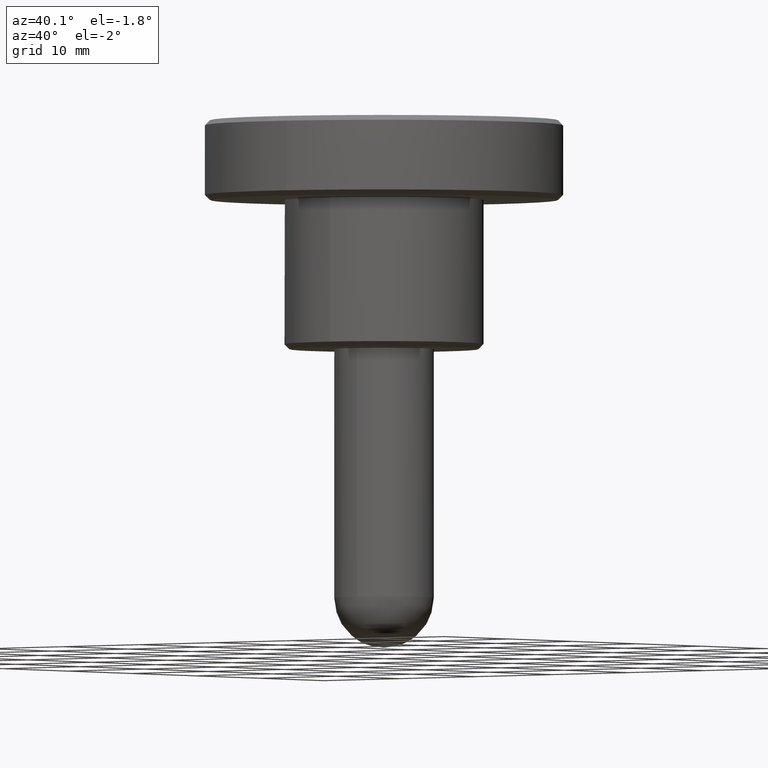
[diagram: clean part render]
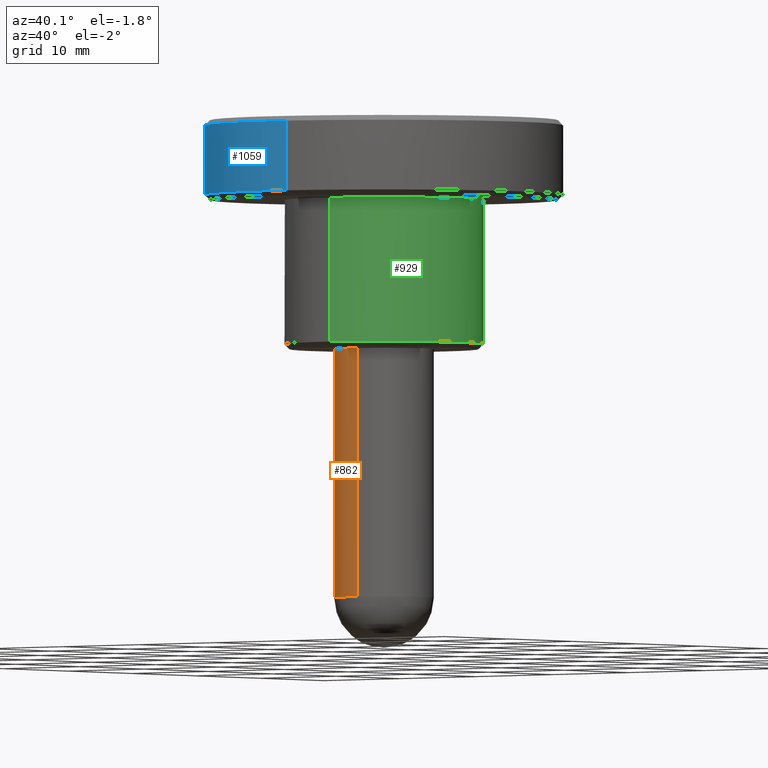
[diagram: same view with three faces highlighted in distinct colors, each labeled with its STEP entity id]
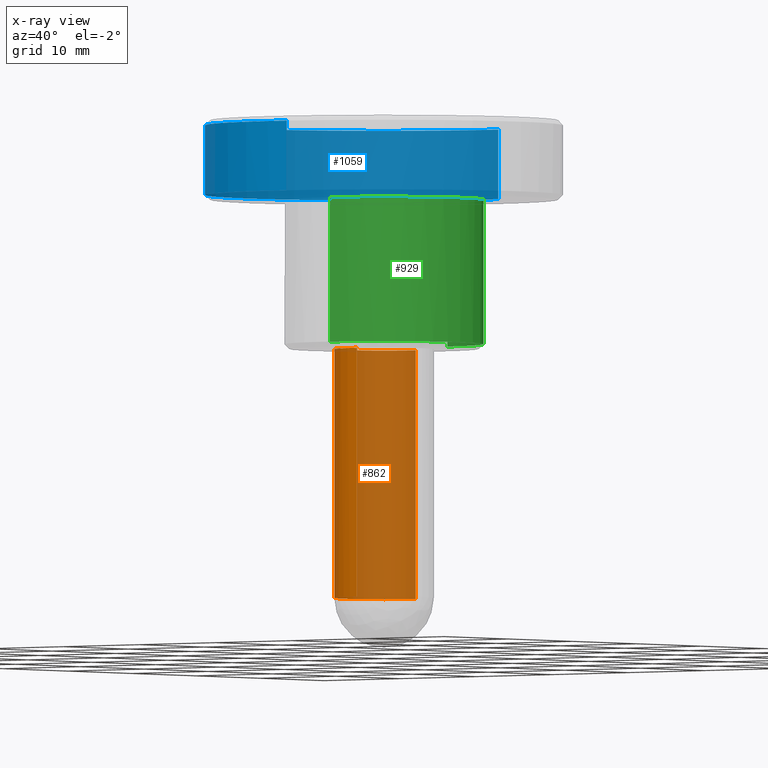
[diagram: x-ray of the same camera — body ghosted, the three highlighted faces saturated]
A machine part, auxiliary view with three faces highlighted in distinct colors.
The next image is the same camera in x-ray (body ghosted, the three faces saturated) — at least one of them is partly hidden behind the body in this view.
Their STEP definitions:

[orange] entity #862 — the highlighted face is a freeform B-spline surface patch.
#695=CARTESIAN_POINT('',(0.620640010450139,-4.961331069121314,-25.0));
#696=VERTEX_POINT('',#695);
#712=CARTESIAN_POINT('',(-0.043632677532883,4.999809615320498,-25.0));
#713=VERTEX_POINT('',#712);
#729=CARTESIAN_POINT('',(-0.043632677526926,4.999809615320549,-5.551115E-017));
#730=VERTEX_POINT('',#729);
#731=CARTESIAN_POINT('',(-0.043632677532883,4.999809615320498,-25.0));
#732=CARTESIAN_POINT('',(-0.043632677526926,4.999809615320549,-5.551115E-017));
#733=QUASI_UNIFORM_CURVE('',1,(#731,#732),.UNSPECIFIED.,.F.,.U.);
#734=EDGE_CURVE('',#713,#730,#733,.T.);
#753=CARTESIAN_POINT('',(0.620640010435135,-4.961331069123191,-5.801229E-017));
#754=VERTEX_POINT('',#753);
#768=CARTESIAN_POINT('',(0.620640010450139,-4.961331069121314,-25.0));
#769=CARTESIAN_POINT('',(0.620640010435135,-4.961331069123191,-5.801229E-017));
#770=QUASI_UNIFORM_CURVE('',1,(#768,#769),.UNSPECIFIED.,.F.,.U.);
#771=EDGE_CURVE('',#696,#754,#770,.T.);
#776=CARTESIAN_POINT('',(-0.043632677491869,4.999809615320855,-25.625000000000000));
#777=CARTESIAN_POINT('',(-5.043442292812725,4.956176937828985,-25.625000000000014));
#778=CARTESIAN_POINT('',(-4.999809615320855,-0.043632677491869,-25.625000000000000));
#779=CARTESIAN_POINT('',(-4.956176937828985,-5.043442292812725,-25.625000000000014));
#780=CARTESIAN_POINT('',(0.043632677491869,-4.999809615320855,-25.625000000000000));
#781=CARTESIAN_POINT('',(0.333250794790868,-4.997282156301378,-25.625000000000007));
#782=CARTESIAN_POINT('',(0.620640010399146,-4.961331069127693,-25.625000000000004));
#783=CARTESIAN_POINT('',(-0.043632677491869,4.999809615320855,0.640625000000004));
#784=CARTESIAN_POINT('',(-5.043442292812725,4.956176937828985,0.640625000000004));
#785=CARTESIAN_POINT('',(-4.999809615320855,-0.043632677491869,0.640625000000004));
#786=CARTESIAN_POINT('',(-4.956176937828985,-5.043442292812725,0.640625000000004));
#787=CARTESIAN_POINT('',(0.043632677491869,-4.999809615320855,0.640625000000004));
#788=CARTESIAN_POINT('',(0.333250794790868,-4.997282156301378,0.640625000000003));
#789=CARTESIAN_POINT('',(0.620640010399146,-4.961331069127693,0.640625000000004));
#797=(BOUNDED_SURFACE()B_SPLINE_SURFACE(2,1,((#776,#783),(#777,#784),(#778,#785),(#779,#786),(#780,#787),(#781,#788),(#782,#789)),.UNSPECIFIED.,.F.,.F.,.U.)B_SPLINE_SURFACE_WITH_KNOTS((3,2,2,3),(2,2),(0.0,8.284271247461899,16.568542494923800,17.231284194720750),(0.0,26.265625000000011),.UNSPECIFIED.)GEOMETRIC_REPRESENTATION_ITEM()RATIONAL_B_SPLINE_SURFACE(((1.0,1.0),(0.707106781186548,0.707106781186548),(1.0,1.0),(0.707106781186548,0.707106781186548),(1.0,1.0),(0.976568542494924,0.976568542494924),(0.956886118190660,0.956886118190660)))REPRESENTATION_ITEM('')SURFACE());
#798=CARTESIAN_POINT('',(-5.0,0.0,-25.0));
#799=VERTEX_POINT('',#798);
#800=CARTESIAN_POINT('',(-5.0,0.0,-25.0));
#801=CARTESIAN_POINT('',(-5.000000000000001,-5.000000000000001,-25.0));
#802=CARTESIAN_POINT('',(0.0,-5.0,-25.0));
#803=CARTESIAN_POINT('',(0.311524637719071,-5.000000000000001,-24.999999999999996));
#804=CARTESIAN_POINT('',(0.620640010450139,-4.961331069121315,-25.000000000000004));
#812=(BOUNDED_CURVE()B_SPLINE_CURVE(2,(#800,#801,#802,#803,#804),.UNSPECIFIED.,.F.,.U.)B_SPLINE_CURVE_WITH_KNOTS((3,2,3),(0.500000000000000,0.750000000000000,0.771473928974169),.UNSPECIFIED.)CURVE()GEOMETRIC_REPRESENTATION_ITEM()RATIONAL_B_SPLINE_CURVE((1.0,0.707106781186548,1.0,0.974841727288737,0.954005430267990))REPRESENTATION_ITEM(''));
#813=EDGE_CURVE('',#799,#696,#812,.T.);
#814=ORIENTED_EDGE('',*,*,#813,.T.);
#815=ORIENTED_EDGE('',*,*,#771,.T.);
#816=CARTESIAN_POINT('',(-5.0,0.0,0.0));
#817=VERTEX_POINT('',#816);
#818=CARTESIAN_POINT('',(0.620640010435135,-4.961331069123191,-5.801229E-017));
#819=CARTESIAN_POINT('',(0.311524637703881,-5.0,0.0));
#820=CARTESIAN_POINT('',(0.0,-5.0,0.0));
#821=CARTESIAN_POINT('',(-5.000000000000001,-5.000000000000001,0.0));
#822=CARTESIAN_POINT('',(-5.0,0.0,0.0));
#830=(BOUNDED_CURVE()B_SPLINE_CURVE(2,(#818,#819,#820,#821,#822),.UNSPECIFIED.,.F.,.U.)B_SPLINE_CURVE_WITH_KNOTS((3,2,3),(0.728526071026852,0.750000000000000,1.0),.UNSPECIFIED.)CURVE()GEOMETRIC_REPRESENTATION_ITEM()RATIONAL_B_SPLINE_CURVE((0.954005430269971,0.974841727289933,1.0,0.707106781186548,1.0))REPRESENTATION_ITEM(''));
#831=EDGE_CURVE('',#754,#817,#830,.T.);
#832=ORIENTED_EDGE('',*,*,#831,.T.);
#833=CARTESIAN_POINT('',(-5.0,0.0,0.0));
#834=CARTESIAN_POINT('',(-5.000000000000001,4.956556052905382,0.0));
#835=CARTESIAN_POINT('',(-0.043632677526926,4.999809615320550,-5.551115E-017));
#843=(BOUNDED_CURVE()B_SPLINE_CURVE(2,(#833,#834,#835),.UNSPECIFIED.,.F.,.U.)B_SPLINE_CURVE_WITH_KNOTS((3,3),(0.0,0.248460105662543),.UNSPECIFIED.)CURVE()GEOMETRIC_REPRESENTATION_ITEM()RATIONAL_B_SPLINE_CURVE((1.0,0.708910879623069,0.996414028094689))REPRESENTATION_ITEM(''));
#844=EDGE_CURVE('',#817,#730,#843,.T.);
#845=ORIENTED_EDGE('',*,*,#844,.T.);
#846=ORIENTED_EDGE('',*,*,#734,.F.);
#847=CARTESIAN_POINT('',(-0.043632677532883,4.999809615320498,-25.0));
#848=CARTESIAN_POINT('',(-5.000000000000001,4.956556052893570,-25.000000000000004));
#849=CARTESIAN_POINT('',(-5.0,0.0,-25.0));
#857=(BOUNDED_CURVE()B_SPLINE_CURVE(2,(#847,#848,#849),.UNSPECIFIED.,.F.,.U.)B_SPLINE_CURVE_WITH_KNOTS((3,3),(0.251539894337877,0.500000000000000),.UNSPECIFIED.)CURVE()GEOMETRIC_REPRESENTATION_ITEM()RATIONAL_B_SPLINE_CURVE((0.996414028093718,0.708910879623561,1.0))REPRESENTATION_ITEM(''));
#858=EDGE_CURVE('',#713,#799,#857,.T.);
#859=ORIENTED_EDGE('',*,*,#858,.T.);
#860=EDGE_LOOP('',(#814,#815,#832,#845,#846,#859));
#861=FACE_OUTER_BOUND('',#860,.T.);
#862=ADVANCED_FACE('',(#861),#797,.T.);

[blue] entity #1059 — the highlighted face is a freeform B-spline surface patch.
#70=CARTESIAN_POINT('',(-17.535926757209861,-4.060944811979751,22.499999999995168));
#71=VERTEX_POINT('',#70);
#72=CARTESIAN_POINT('',(-18.0,0.0,22.500000000000000));
#73=VERTEX_POINT('',#72);
#74=CARTESIAN_POINT('',(-17.535926757209864,-4.060944811979750,22.499999999995158));
#75=CARTESIAN_POINT('',(-17.999999999999996,-2.056988892277946,22.500000000000000));
#76=CARTESIAN_POINT('',(-18.0,0.0,22.500000000000000));
#84=(BOUNDED_CURVE()B_SPLINE_CURVE(2,(#74,#75,#76),.UNSPECIFIED.,.F.,.U.)B_SPLINE_CURVE_WITH_KNOTS((3,3),(0.961422971783845,1.0),.UNSPECIFIED.)CURVE()GEOMETRIC_REPRESENTATION_ITEM()RATIONAL_B_SPLINE_CURVE((0.923556557441548,0.954804200134052,1.0))REPRESENTATION_ITEM(''));
#85=EDGE_CURVE('',#71,#73,#84,.T.);
#143=CARTESIAN_POINT('',(-0.157077639032708,-17.999314615162959,22.499999999991580));
#144=VERTEX_POINT('',#143);
#150=CARTESIAN_POINT('',(2.234293266750887,-17.860793196217060,22.499999999999940));
#151=VERTEX_POINT('',#150);
#152=CARTESIAN_POINT('',(2.234293266750888,-17.860793196217056,22.499999999999936));
#153=CARTESIAN_POINT('',(1.121483247218361,-18.000000000000004,22.500000000000004));
#154=CARTESIAN_POINT('',(0.0,-18.0,22.500000000000000));
#155=CARTESIAN_POINT('',(-0.078540314834508,-18.0,22.500000000000000));
#156=CARTESIAN_POINT('',(-0.157077639032708,-17.999314615162966,22.499999999991577));
#164=(BOUNDED_CURVE()B_SPLINE_CURVE(2,(#152,#153,#154,#155,#156),.UNSPECIFIED.,.F.,.U.)B_SPLINE_CURVE_WITH_KNOTS((3,2,3),(0.728526172728731,0.750000000000000,0.751539894336198),.UNSPECIFIED.)CURVE()GEOMETRIC_REPRESENTATION_ITEM()RATIONAL_B_SPLINE_CURVE((0.954005627634095,0.974841846441095,1.0,0.998195901564953,0.996414028097603))REPRESENTATION_ITEM(''));
#165=EDGE_CURVE('',#151,#144,#164,.T.);
#182=CARTESIAN_POINT('',(-0.157060872765595,17.999314761455910,22.499999999999972));
#183=VERTEX_POINT('',#182);
#199=CARTESIAN_POINT('',(-18.0,0.0,22.500000000000000));
#200=CARTESIAN_POINT('',(-18.000000000000004,17.843618412510050,22.500000000000004));
#201=CARTESIAN_POINT('',(-0.157060872765595,17.999314761455917,22.499999999999968));
#209=(BOUNDED_CURVE()B_SPLINE_CURVE(2,(#199,#200,#201),.UNSPECIFIED.,.F.,.U.)B_SPLINE_CURVE_WITH_KNOTS((3,3),(0.0,0.248460269740511),.UNSPECIFIED.)CURVE()GEOMETRIC_REPRESENTATION_ITEM()RATIONAL_B_SPLINE_CURVE((1.0,0.708910687393773,0.996414407817330))REPRESENTATION_ITEM(''));
#210=EDGE_CURVE('',#73,#183,#209,.T.);
#229=CARTESIAN_POINT('',(-0.157077639032708,-17.999314615162955,22.499999999991577));
#230=CARTESIAN_POINT('',(-14.336755532668068,-17.875570440763699,22.500000000000007));
#231=CARTESIAN_POINT('',(-17.535926757209861,-4.060944811979752,22.499999999995168));
#239=(BOUNDED_CURVE()B_SPLINE_CURVE(2,(#229,#230,#231),.UNSPECIFIED.,.F.,.U.)B_SPLINE_CURVE_WITH_KNOTS((3,3),(0.751539894336199,0.961422971783844),.UNSPECIFIED.)CURVE()GEOMETRIC_REPRESENTATION_ITEM()RATIONAL_B_SPLINE_CURVE((0.996414028097602,0.753549905437675,0.923556557441546))REPRESENTATION_ITEM(''));
#240=EDGE_CURVE('',#144,#71,#239,.T.);
#337=CARTESIAN_POINT('',(0.157077645517671,-17.999314617755640,15.500000002657560));
#338=VERTEX_POINT('',#337);
#344=CARTESIAN_POINT('',(-18.0,0.0,15.500000000000000));
#345=VERTEX_POINT('',#344);
#346=CARTESIAN_POINT('',(-18.0,0.0,15.500000000000000));
#347=CARTESIAN_POINT('',(-18.000000000000007,-18.000000000000007,15.500000000000005));
#348=CARTESIAN_POINT('',(0.0,-18.0,15.500000000000000));
#349=CARTESIAN_POINT('',(0.078540321296755,-18.000000000000004,15.500000000000005));
#350=CARTESIAN_POINT('',(0.157077645517671,-17.999314617755633,15.500000002657558));
#358=(BOUNDED_CURVE()B_SPLINE_CURVE(2,(#346,#347,#348,#349,#350),.UNSPECIFIED.,.F.,.U.)B_SPLINE_CURVE_WITH_KNOTS((3,2,3),(0.0,0.250000000000000,0.251539894462671),.UNSPECIFIED.)CURVE()GEOMETRIC_REPRESENTATION_ITEM()RATIONAL_B_SPLINE_CURVE((1.0,0.707106781186547,1.0,0.998195901416781,0.996414027804909))REPRESENTATION_ITEM(''));
#359=EDGE_CURVE('',#345,#338,#358,.T.);
#361=CARTESIAN_POINT('',(-0.157060678357192,17.999314763152132,15.500000000000000));
#362=VERTEX_POINT('',#361);
#363=CARTESIAN_POINT('',(-0.157060678357192,17.999314763152125,15.500000000000002));
#364=CARTESIAN_POINT('',(-17.999999999999996,17.843618605244128,15.500000000000007));
#365=CARTESIAN_POINT('',(-18.0,0.0,15.500000000000000));
#373=(BOUNDED_CURVE()B_SPLINE_CURVE(2,(#363,#364,#365),.UNSPECIFIED.,.F.,.U.)B_SPLINE_CURVE_WITH_KNOTS((3,3),(0.751539728356992,1.0),.UNSPECIFIED.)CURVE()GEOMETRIC_REPRESENTATION_ITEM()RATIONAL_B_SPLINE_CURVE((0.996414412220248,0.708910685164858,1.0))REPRESENTATION_ITEM(''));
#374=EDGE_CURVE('',#362,#345,#373,.T.);
#444=CARTESIAN_POINT('',(2.234295641323565,-17.860792899171379,15.500000000000000));
#445=VERTEX_POINT('',#444);
#459=CARTESIAN_POINT('',(0.157077645517671,-17.999314617755640,15.500000002657565));
#460=CARTESIAN_POINT('',(1.199698622931773,-17.990215798916342,15.500000000000000));
#461=CARTESIAN_POINT('',(2.234295641323565,-17.860792899171390,15.500000000000007));
#469=(BOUNDED_CURVE()B_SPLINE_CURVE(2,(#459,#460,#461),.UNSPECIFIED.,.F.,.U.)B_SPLINE_CURVE_WITH_KNOTS((3,3),(0.251539894462671,0.271473849692561),.UNSPECIFIED.)CURVE()GEOMETRIC_REPRESENTATION_ITEM()RATIONAL_B_SPLINE_CURVE((0.996414027804909,0.973347649124152,0.954005584122997))REPRESENTATION_ITEM(''));
#470=EDGE_CURVE('',#338,#445,#469,.T.);
#1009=CARTESIAN_POINT('',(2.234295641323565,-17.860792899171379,15.500000000000000));
#1010=CARTESIAN_POINT('',(2.234293266750887,-17.860793196217060,22.499999999999940));
#1011=QUASI_UNIFORM_CURVE('',1,(#1009,#1010),.UNSPECIFIED.,.F.,.U.);
#1012=EDGE_CURVE('',#445,#151,#1011,.T.);
#1017=CARTESIAN_POINT('',(-0.157060678357192,17.999314763152132,15.500000000000000));
#1018=CARTESIAN_POINT('',(-0.157060872765595,17.999314761455910,22.499999999999972));
#1019=QUASI_UNIFORM_CURVE('',1,(#1017,#1018),.UNSPECIFIED.,.F.,.U.);
#1020=EDGE_CURVE('',#362,#183,#1019,.T.);
#1026=CARTESIAN_POINT('',(-0.157077638970730,17.999314615155079,15.324999999999999));
#1027=CARTESIAN_POINT('',(-18.156392254125802,17.842236976184342,15.324999999999998));
#1028=CARTESIAN_POINT('',(-17.999314615155079,-0.157077638970730,15.324999999999999));
#1029=CARTESIAN_POINT('',(-17.842236976184342,-18.156392254125802,15.324999999999998));
#1030=CARTESIAN_POINT('',(0.157077638970730,-17.999314615155079,15.324999999999999));
#1031=CARTESIAN_POINT('',(1.199702861247124,-17.990215762684961,15.325000000000003));
#1032=CARTESIAN_POINT('',(2.234304037436927,-17.860791848859694,15.324999999999998));
#1033=CARTESIAN_POINT('',(-0.157077638970730,17.999314615155079,22.679375000000000));
#1034=CARTESIAN_POINT('',(-18.156392254125802,17.842236976184342,22.679375000000000));
#1035=CARTESIAN_POINT('',(-17.999314615155079,-0.157077638970730,22.679375000000000));
#1036=CARTESIAN_POINT('',(-17.842236976184342,-18.156392254125802,22.679375000000000));
#1037=CARTESIAN_POINT('',(0.157077638970730,-17.999314615155079,22.679375000000000));
#1038=CARTESIAN_POINT('',(1.199702861247124,-17.990215762684961,22.679375000000004));
#1039=CARTESIAN_POINT('',(2.234304037436927,-17.860791848859694,22.679375000000004));
#1047=(BOUNDED_SURFACE()B_SPLINE_SURFACE(2,1,((#1026,#1033),(#1027,#1034),(#1028,#1035),(#1029,#1036),(#1030,#1037),(#1031,#1038),(#1032,#1039)),.UNSPECIFIED.,.F.,.F.,.U.)B_SPLINE_SURFACE_WITH_KNOTS((3,2,2,3),(2,2),(0.0,29.823376490862831,59.646752981725669,62.032623100994698),(0.0,7.354375000000009),.UNSPECIFIED.)GEOMETRIC_REPRESENTATION_ITEM()RATIONAL_B_SPLINE_SURFACE(((1.0,1.0),(0.707106781186548,0.707106781186548),(1.0,1.0),(0.707106781186548,0.707106781186548),(1.0,1.0),(0.976568542494924,0.976568542494924),(0.956886118190660,0.956886118190660)))REPRESENTATION_ITEM('')SURFACE());
#1048=ORIENTED_EDGE('',*,*,#165,.T.);
#1049=ORIENTED_EDGE('',*,*,#240,.T.);
#1050=ORIENTED_EDGE('',*,*,#85,.T.);
#1051=ORIENTED_EDGE('',*,*,#210,.T.);
#1052=ORIENTED_EDGE('',*,*,#1020,.F.);
#1053=ORIENTED_EDGE('',*,*,#374,.T.);
#1054=ORIENTED_EDGE('',*,*,#359,.T.);
#1055=ORIENTED_EDGE('',*,*,#470,.T.);
#1056=ORIENTED_EDGE('',*,*,#1012,.T.);
#1057=EDGE_LOOP('',(#1048,#1049,#1050,#1051,#1052,#1053,#1054,#1055,#1056));
#1058=FACE_OUTER_BOUND('',#1057,.T.);
#1059=ADVANCED_FACE('',(#1058),#1047,.T.);

[green] entity #929 — the highlighted face is a freeform B-spline surface patch.
#500=CARTESIAN_POINT('',(1.241272380013459,-9.922663094076931,0.499999999999901));
#501=VERTEX_POINT('',#500);
#558=CARTESIAN_POINT('',(-0.087263212267545,9.999619249339538,0.499999999999496));
#559=VERTEX_POINT('',#558);
#565=CARTESIAN_POINT('',(10.0,0.0,0.499999999999945));
#566=VERTEX_POINT('',#565);
#567=CARTESIAN_POINT('',(10.0,0.0,0.499999999999945));
#568=CARTESIAN_POINT('',(10.000000000000002,10.000000000000002,0.499999999999945));
#569=CARTESIAN_POINT('',(0.0,10.0,0.499999999999945));
#570=CARTESIAN_POINT('',(-0.043632436787731,10.0,0.499999999999945));
#571=CARTESIAN_POINT('',(-0.087263212267545,9.999619249339538,0.499999999999496));
#579=(BOUNDED_CURVE()B_SPLINE_CURVE(2,(#567,#568,#569,#570,#571),.UNSPECIFIED.,.F.,.U.)B_SPLINE_CURVE_WITH_KNOTS((3,2,3),(0.500000000000000,0.750000000000000,0.751539856591150),.UNSPECIFIED.)CURVE()GEOMETRIC_REPRESENTATION_ITEM()RATIONAL_B_SPLINE_CURVE((1.0,0.707106781186548,1.0,0.998195945786028,0.996414115450233))REPRESENTATION_ITEM(''));
#580=EDGE_CURVE('',#566,#559,#579,.T.);
#582=CARTESIAN_POINT('',(1.241272380013459,-9.922663094076931,0.499999999999901));
#583=CARTESIAN_POINT('',(10.0,-8.826992851558027,0.499999999999945));
#584=CARTESIAN_POINT('',(10.0,0.0,0.499999999999945));
#592=(BOUNDED_CURVE()B_SPLINE_CURVE(2,(#582,#583,#584),.UNSPECIFIED.,.F.,.U.)B_SPLINE_CURVE_WITH_KNOTS((3,3),(0.271473799107639,0.500000000000000),.UNSPECIFIED.)CURVE()GEOMETRIC_REPRESENTATION_ITEM()RATIONAL_B_SPLINE_CURVE((0.954005682288873,0.732264901749707,1.0))REPRESENTATION_ITEM(''));
#593=EDGE_CURVE('',#501,#566,#592,.T.);
#863=CARTESIAN_POINT('',(1.241280020798293,-9.922662138255385,0.137499999999943));
#864=CARTESIAN_POINT('',(10.077328305024446,-8.817312581332210,0.137499999999943));
#865=CARTESIAN_POINT('',(9.999619230641709,0.087265354983739,0.137499999999943));
#866=CARTESIAN_POINT('',(9.912353875657971,10.086884585625448,0.137499999999943));
#867=CARTESIAN_POINT('',(-0.087265354983739,9.999619230641709,0.137499999999943));
#868=CARTESIAN_POINT('',(1.241280020798293,-9.922662138255385,15.371562500000005));
#869=CARTESIAN_POINT('',(10.077328305024446,-8.817312581332210,15.371562500000008));
#870=CARTESIAN_POINT('',(9.999619230641709,0.087265354983739,15.371562500000000));
#871=CARTESIAN_POINT('',(9.912353875657971,10.086884585625448,15.371562500000001));
#872=CARTESIAN_POINT('',(-0.087265354983739,9.999619230641709,15.371562500000000));
#880=(BOUNDED_SURFACE()B_SPLINE_SURFACE(2,1,((#863,#868),(#864,#869),(#865,#870),(#866,#871),(#867,#872)),.UNSPECIFIED.,.F.,.F.,.U.)B_SPLINE_SURFACE_WITH_KNOTS((3,2,3),(2,2),(0.0,15.243059095329890,31.811601590253691),(0.0,15.234062500000061),.UNSPECIFIED.)GEOMETRIC_REPRESENTATION_ITEM()RATIONAL_B_SPLINE_SURFACE(((0.956886118190660,0.956886118190660),(0.730538238691624,0.730538238691624),(1.0,1.0),(0.707106781186548,0.707106781186548),(1.0,1.0)))REPRESENTATION_ITEM('')SURFACE());
#881=ORIENTED_EDGE('',*,*,#593,.T.);
#882=ORIENTED_EDGE('',*,*,#580,.T.);
#883=CARTESIAN_POINT('',(-0.087259972945896,9.999619277607147,15.0));
#884=VERTEX_POINT('',#883);
#885=CARTESIAN_POINT('',(-0.087263212267545,9.999619249339538,0.499999999999496));
#886=CARTESIAN_POINT('',(-0.087259972945896,9.999619277607147,15.0));
#887=QUASI_UNIFORM_CURVE('',1,(#885,#886),.UNSPECIFIED.,.F.,.U.);
#888=EDGE_CURVE('',#559,#884,#887,.T.);
#889=ORIENTED_EDGE('',*,*,#888,.T.);
#890=CARTESIAN_POINT('',(10.0,0.0,15.0));
#891=VERTEX_POINT('',#890);
#892=CARTESIAN_POINT('',(-0.087259972945896,9.999619277607147,15.000000000000004));
#893=CARTESIAN_POINT('',(-0.043630817034404,9.999999999999998,15.000000000000005));
#894=CARTESIAN_POINT('',(0.0,10.0,15.0));
#895=CARTESIAN_POINT('',(10.000000000000002,10.000000000000002,14.999999999999995));
#896=CARTESIAN_POINT('',(10.0,0.0,15.0));
#904=(BOUNDED_CURVE()B_SPLINE_CURVE(2,(#892,#893,#894,#895,#896),.UNSPECIFIED.,.F.,.U.)B_SPLINE_CURVE_WITH_KNOTS((3,2,3),(0.248460200469343,0.250000000000000,0.500000000000000),.UNSPECIFIED.)CURVE()GEOMETRIC_REPRESENTATION_ITEM()RATIONAL_B_SPLINE_CURVE((0.996414247504272,0.998196012636554,1.0,0.707106781186548,1.0))REPRESENTATION_ITEM(''));
#905=EDGE_CURVE('',#884,#891,#904,.T.);
#906=ORIENTED_EDGE('',*,*,#905,.T.);
#907=CARTESIAN_POINT('',(1.241270529552836,-9.922663325557917,15.0));
#908=VERTEX_POINT('',#907);
#909=CARTESIAN_POINT('',(10.0,0.0,15.0));
#910=CARTESIAN_POINT('',(10.0,-8.826994510518793,15.000000000000005));
#911=CARTESIAN_POINT('',(1.241270529552836,-9.922663325557917,14.999999999999996));
#919=(BOUNDED_CURVE()B_SPLINE_CURVE(2,(#909,#910,#911),.UNSPECIFIED.,.F.,.U.)B_SPLINE_CURVE_WITH_KNOTS((3,3),(0.500000000000000,0.728526232342860),.UNSPECIFIED.)CURVE()GEOMETRIC_REPRESENTATION_ITEM()RATIONAL_B_SPLINE_CURVE((1.0,0.732264864903156,0.954005743322218))REPRESENTATION_ITEM(''));
#920=EDGE_CURVE('',#891,#908,#919,.T.);
#921=ORIENTED_EDGE('',*,*,#920,.T.);
#922=CARTESIAN_POINT('',(1.241272380013459,-9.922663094076931,0.499999999999901));
#923=CARTESIAN_POINT('',(1.241270529552836,-9.922663325557917,15.0));
#924=QUASI_UNIFORM_CURVE('',1,(#922,#923),.UNSPECIFIED.,.F.,.U.);
#925=EDGE_CURVE('',#501,#908,#924,.T.);
#926=ORIENTED_EDGE('',*,*,#925,.F.);
#927=EDGE_LOOP('',(#881,#882,#889,#906,#921,#926));
#928=FACE_OUTER_BOUND('',#927,.T.);
#929=ADVANCED_FACE('',(#928),#880,.T.);